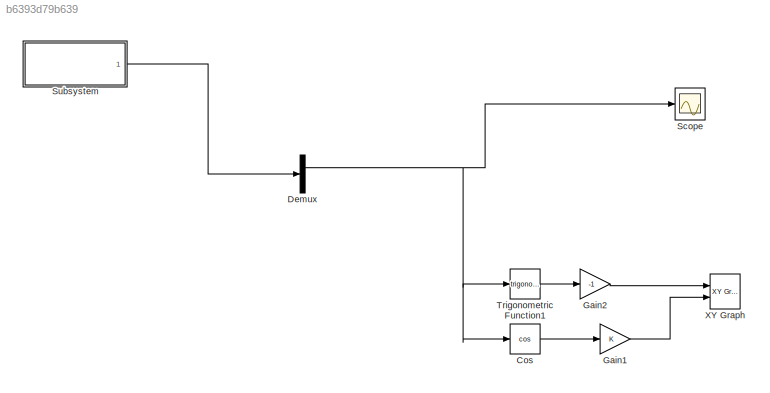
MODEL slx_b6393d79b639
KIND model
CONFIG AbsTol = auto
CONFIG EnableMultiTasking = off
CONFIG FixedStep = auto
CONFIG MaxStep = auto
CONFIG MinStep = auto
CONFIG RelTol = 1e-3
CONFIG SampleTimeConstraint = Unconstrained
CONFIG SolverName = VariableStepAuto
CONFIG StartTime = 0.0
CONFIG StopTime = 10.0
BLOCK [Trigonometry] Cos
  Operator = cos
  Ports = [1, 1]
BLOCK [Demux] Demux
  Outputs = 2
  Ports = [1, 2]
BLOCK [Gain] Gain1
BLOCK [Gain] Gain2
  Gain = -1
BLOCK [Scope] Scope
  Floating = off
  NumInputPorts = 1
  Ports = [1]
  ScopeSpecificationString = Simulink.scopes.TimeScopeBlockCfg('CurrentConfiguration', extmgr.ConfigurationSet(extmgr.Configuration('Core','General UI',true),extmgr.Configuration('Core','Source UI',true),extmgr.Configuration('Sources','WiredSimulink',true),extmgr.Configuration('Visuals','Time Domain',true,'SerializedDisplays',{struct('MinYLimReal','0.19637','MaxYLimReal','6.08665','YLabelReal','','MinYLimMag','0.19637','MaxYL...<+1354ch>
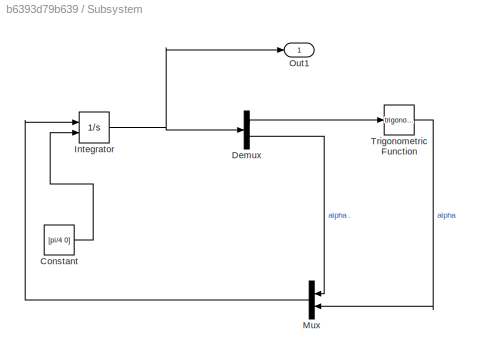
BLOCK [SubSystem] Subsystem
  Ports = [0, 1]
  RequestExecContextInheritance = off
BLOCK [Constant] Subsystem/Constant
  Value = [pi/4 0]
  VectorParams1D = off
BLOCK [Demux] Subsystem/Demux
  Outputs = 2
  Ports = [1, 2]
BLOCK [Integrator] Subsystem/Integrator
  InitialConditionSource = external
  Ports = [2, 1]
BLOCK [Mux] Subsystem/Mux
  DisplayOption = bar
  Inputs = 2
  Ports = [2, 1]
BLOCK [Outport] Subsystem/Out1
BLOCK [Trigonometry] Subsystem/Trigonometric Function
  Ports = [1, 1]
BLOCK [Trigonometry] Trigonometric Function1
  Ports = [1, 1]
BLOCK [Reference] XY Graph  REF=simulink/Sinks/XY Graph
  Ports = [2]
  SourceBlock = simulink/Sinks/XY Graph
  SourceProductBaseCode = SL
  SourceType = XY scope.
LINE Cos:1 -> Gain1:1
NET Demux:1 -> Cos:1, Scope:1, Trigonometric Function1:1
LINE Gain1:1 -> XY Graph:2
LINE Gain2:1 -> XY Graph:1
LINE Subsystem/Constant:1 -> Subsystem/Integrator:2
LINE Subsystem/Demux:1 -> Subsystem/Trigonometric Function:1
LINE Subsystem/Demux:2 -> Subsystem/Mux:1
NET Subsystem/Integrator:1 -> Subsystem/Demux:1, Subsystem/Out1:1
LINE Subsystem/Mux:1 -> Subsystem/Integrator:1
LINE Subsystem/Trigonometric Function:1 -> Subsystem/Mux:2
LINE Subsystem:1 -> Demux:1
LINE Trigonometric Function1:1 -> Gain2:1
note: NET lines group one-source signal fan-out (src -> all destinations, sorted); 1:1 wires keep LINE
